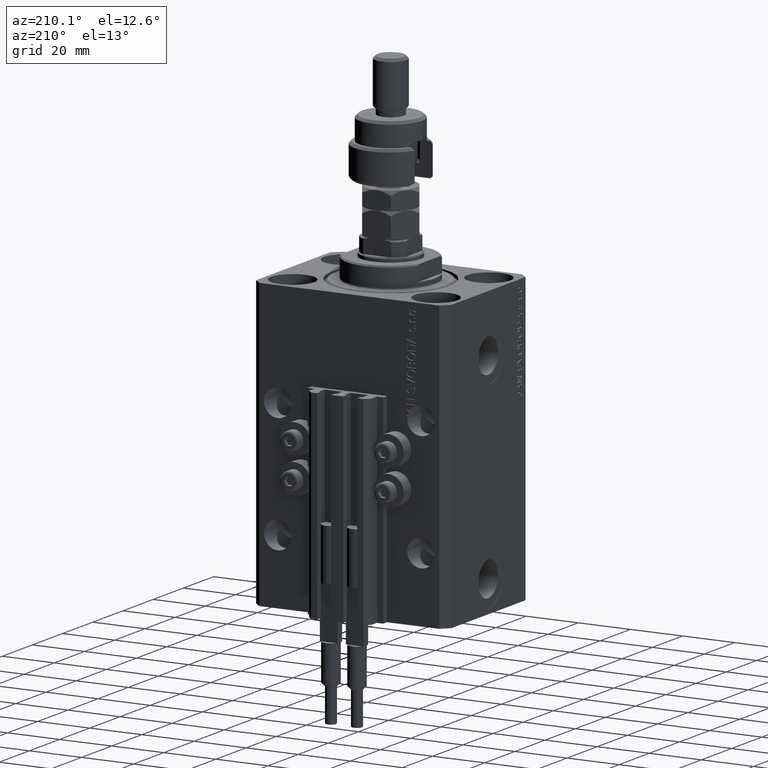
[diagram: clean part render]
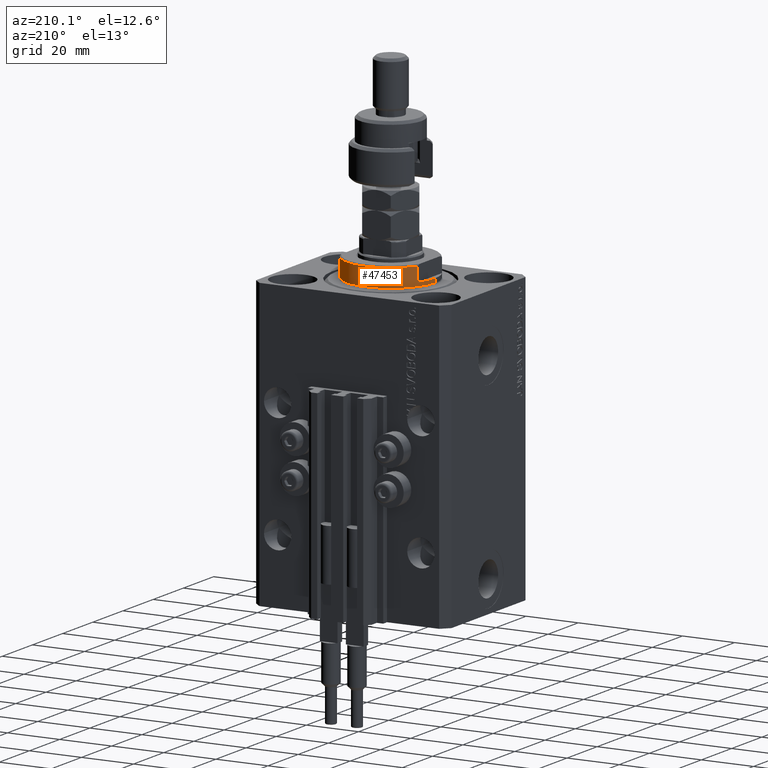
[diagram: same view with one face highlighted and labeled with its STEP entity id]
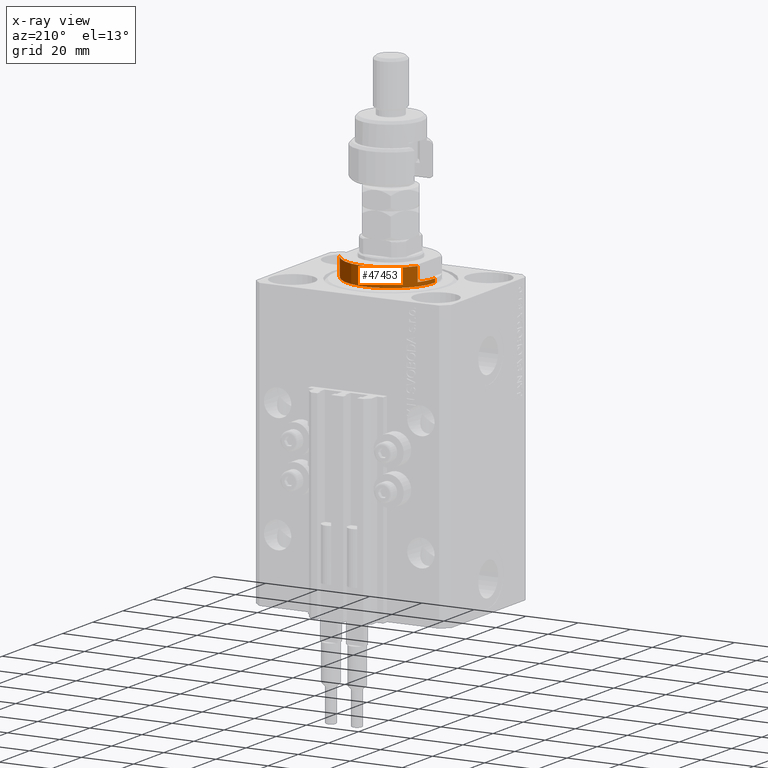
[diagram: x-ray of the same camera — body ghosted, the highlighted face saturated]
A machine part, auxiliary view. The second image highlights one B-rep face of the part: STEP entity #47453.
The next image is the same camera in x-ray: the body ghosted, the highlighted face saturated — about 0% of this face is hidden behind the body in this view.
In plain terms, the highlighted cylindrical surface (partial cylindrical patch) has radius 17 mm, axis along (0, 0, -1).
Its self-contained STEP definition (entity closure, byte-faithful):
#188 = ORIENTED_EDGE ( 'NONE', *, *, #21193, .T. ) ;
#1438 = CARTESIAN_POINT ( 'NONE',  ( 17.00000000000000000, 0.000000000000000000, -8.000000000000000000 ) ) ;
#1543 = VECTOR ( 'NONE', #25227, 1000.000000000000000 ) ;
#2305 = LINE ( 'NONE', #9512, #1543 ) ;
#2480 = CARTESIAN_POINT ( 'NONE',  ( -15.00000000000000000, 8.000000000000001776, -8.000000000000000000 ) ) ;
#2894 = VECTOR ( 'NONE', #17414, 1000.000000000000000 ) ;
#4032 = ORIENTED_EDGE ( 'NONE', *, *, #35026, .F. ) ;
#5068 = DIRECTION ( 'NONE',  ( -0.000000000000000000, -0.000000000000000000, -1.000000000000000000 ) ) ;
#5982 = CARTESIAN_POINT ( 'NONE',  ( -17.00000000000000000, 2.081899558550500280E-15, -8.000000000000000000 ) ) ;
#6280 = DIRECTION ( 'NONE',  ( 0.000000000000000000, 0.000000000000000000, 1.000000000000000000 ) ) ;
#8607 = CARTESIAN_POINT ( 'NONE',  ( 17.00000000000000000, 0.000000000000000000, -0.5000000000000004441 ) ) ;
#9334 = CIRCLE ( 'NONE', #22509, 17.00000000000000000 ) ;
#9512 = CARTESIAN_POINT ( 'NONE',  ( 15.00000000000000000, 8.000000000000001776, -8.000000000000000000 ) ) ;
#9776 = CARTESIAN_POINT ( 'NONE',  ( -14.99999999999999645, 8.000000000000003553, -2.000000000000000000 ) ) ;
#10254 = VERTEX_POINT ( 'NONE', #44354 ) ;
#11448 = ORIENTED_EDGE ( 'NONE', *, *, #24169, .T. ) ;
#11523 = CYLINDRICAL_SURFACE ( 'NONE', #39333, 17.00000000000000000 ) ;
#11650 = CIRCLE ( 'NONE', #13168, 17.00000000000000000 ) ;
#12267 = VERTEX_POINT ( 'NONE', #15015 ) ;
#12500 = AXIS2_PLACEMENT_3D ( 'NONE', #12792, #5068, #32642 ) ;
#12792 = CARTESIAN_POINT ( 'NONE',  ( 0.000000000000000000, 0.000000000000000000, -0.5000000000000004441 ) ) ;
#12946 = LINE ( 'NONE', #5982, #16002 ) ;
#13168 = AXIS2_PLACEMENT_3D ( 'NONE', #50034, #22186, #22440 ) ;
#14023 = CARTESIAN_POINT ( 'NONE',  ( 0.000000000000000000, 0.000000000000000000, -7.500000000000007105 ) ) ;
#15015 = CARTESIAN_POINT ( 'NONE',  ( 17.00000000000000000, 0.000000000000000000, -2.000000000000000000 ) ) ;
#15955 = EDGE_CURVE ( 'NONE', #40859, #12267, #11650, .T. ) ;
#16002 = VECTOR ( 'NONE', #28923, 1000.000000000000000 ) ;
#17414 = DIRECTION ( 'NONE',  ( -0.000000000000000000, -0.000000000000000000, 1.000000000000000000 ) ) ;
#17695 = VERTEX_POINT ( 'NONE', #33827 ) ;
#20773 = CIRCLE ( 'NONE', #28169, 17.00000000000000000 ) ;
#20867 = ORIENTED_EDGE ( 'NONE', *, *, #37109, .T. ) ;
#21193 = EDGE_CURVE ( 'NONE', #17695, #39453, #37781, .T. ) ;
#21481 = VECTOR ( 'NONE', #25917, 1000.000000000000000 ) ;
#22175 = VERTEX_POINT ( 'NONE', #50444 ) ;
#22186 = DIRECTION ( 'NONE',  ( 0.000000000000000000, 0.000000000000000000, -1.000000000000000000 ) ) ;
#22440 = DIRECTION ( 'NONE',  ( -1.000000000000000000, 0.000000000000000000, 0.000000000000000000 ) ) ;
#22509 = AXIS2_PLACEMENT_3D ( 'NONE', #22975, #38694, #38946 ) ;
#22975 = CARTESIAN_POINT ( 'NONE',  ( 0.000000000000000000, 0.000000000000000000, -2.000000000000000000 ) ) ;
#23665 = CARTESIAN_POINT ( 'NONE',  ( 15.00000000000000000, 8.000000000000001776, -7.500000000000007105 ) ) ;
#24169 = EDGE_CURVE ( 'NONE', #10254, #27276, #34736, .T. ) ;
#24676 = EDGE_CURVE ( 'NONE', #36808, #17695, #20773, .T. ) ;
#25227 = DIRECTION ( 'NONE',  ( -0.000000000000000000, -0.000000000000000000, 1.000000000000000000 ) ) ;
#25355 = DIRECTION ( 'NONE',  ( -1.000000000000000000, 0.000000000000000000, 0.000000000000000000 ) ) ;
#25917 = DIRECTION ( 'NONE',  ( -0.000000000000000000, -0.000000000000000000, 1.000000000000000000 ) ) ;
#26565 = EDGE_CURVE ( 'NONE', #22175, #39453, #9334, .T. ) ;
#27234 = CARTESIAN_POINT ( 'NONE',  ( 0.000000000000000000, 0.000000000000000000, -8.000000000000000000 ) ) ;
#27276 = VERTEX_POINT ( 'NONE', #8607 ) ;
#28169 = AXIS2_PLACEMENT_3D ( 'NONE', #14023, #6280, #25355 ) ;
#28923 = DIRECTION ( 'NONE',  ( -0.000000000000000000, -0.000000000000000000, 1.000000000000000000 ) ) ;
#31619 = DIRECTION ( 'NONE',  ( 1.000000000000000000, 0.000000000000000000, 0.000000000000000000 ) ) ;
#31692 = ORIENTED_EDGE ( 'NONE', *, *, #26565, .F. ) ;
#32642 = DIRECTION ( 'NONE',  ( 1.000000000000000000, 0.000000000000000000, 0.000000000000000000 ) ) ;
#33827 = CARTESIAN_POINT ( 'NONE',  ( -15.00000000000000000, 8.000000000000001776, -7.500000000000007105 ) ) ;
#34736 = CIRCLE ( 'NONE', #12500, 17.00000000000000000 ) ;
#35026 = EDGE_CURVE ( 'NONE', #12267, #27276, #36761, .T. ) ;
#36761 = LINE ( 'NONE', #1438, #2894 ) ;
#36808 = VERTEX_POINT ( 'NONE', #23665 ) ;
#37109 = EDGE_CURVE ( 'NONE', #22175, #10254, #12946, .T. ) ;
#37781 = LINE ( 'NONE', #2480, #21481 ) ;
#38694 = DIRECTION ( 'NONE',  ( 0.000000000000000000, 0.000000000000000000, -1.000000000000000000 ) ) ;
#38946 = DIRECTION ( 'NONE',  ( -1.000000000000000000, 0.000000000000000000, 0.000000000000000000 ) ) ;
#39333 = AXIS2_PLACEMENT_3D ( 'NONE', #27234, #46830, #31619 ) ;
#39453 = VERTEX_POINT ( 'NONE', #9776 ) ;
#40859 = VERTEX_POINT ( 'NONE', #46550 ) ;
#40895 = ORIENTED_EDGE ( 'NONE', *, *, #24676, .T. ) ;
#41800 = ORIENTED_EDGE ( 'NONE', *, *, #15955, .F. ) ;
#44354 = CARTESIAN_POINT ( 'NONE',  ( -17.00000000000000000, 2.081899558550500280E-15, -0.5000000000000004441 ) ) ;
#44943 = EDGE_LOOP ( 'NONE', ( #31692, #20867, #11448, #4032, #41800, #45081, #40895, #188 ) ) ;
#45081 = ORIENTED_EDGE ( 'NONE', *, *, #49509, .F. ) ;
#46550 = CARTESIAN_POINT ( 'NONE',  ( 14.99999999999999645, 8.000000000000003553, -2.000000000000000000 ) ) ;
#46830 = DIRECTION ( 'NONE',  ( -0.000000000000000000, -0.000000000000000000, 1.000000000000000000 ) ) ;
#47453 = ADVANCED_FACE ( 'NONE', ( #50454 ), #11523, .T. ) ;
#49509 = EDGE_CURVE ( 'NONE', #36808, #40859, #2305, .T. ) ;
#50034 = CARTESIAN_POINT ( 'NONE',  ( 0.000000000000000000, 0.000000000000000000, -2.000000000000000000 ) ) ;
#50444 = CARTESIAN_POINT ( 'NONE',  ( -17.00000000000000000, 2.081899558550500280E-15, -2.000000000000000000 ) ) ;
#50454 = FACE_OUTER_BOUND ( 'NONE', #44943, .T. ) ;